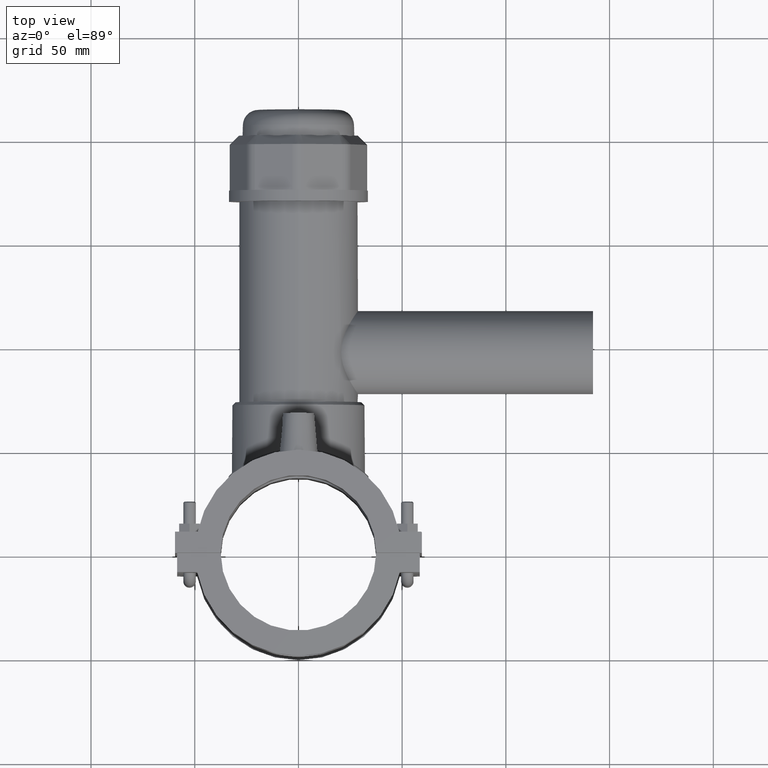
[diagram: clean part render]
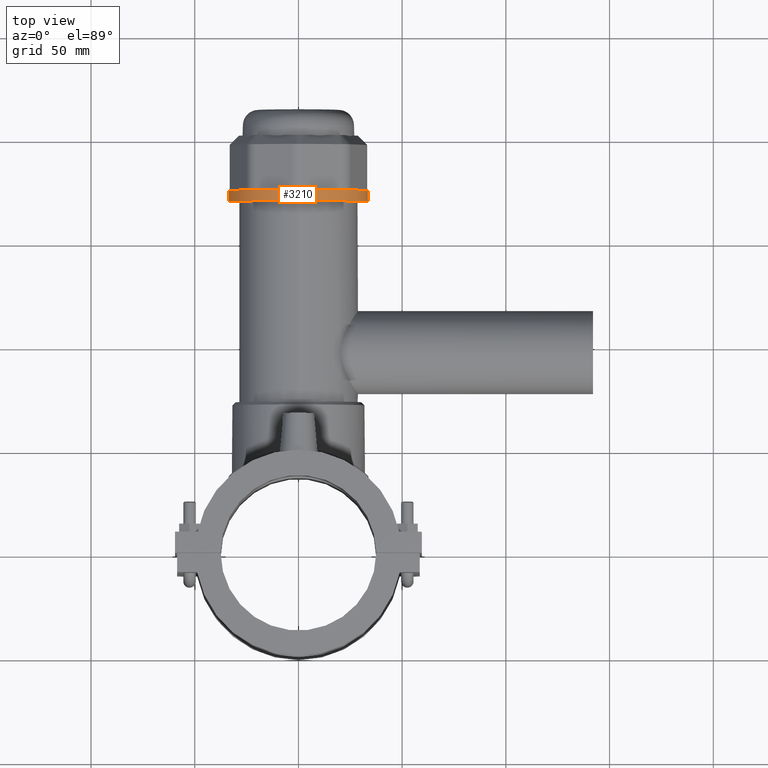
[diagram: same view with one face highlighted and labeled with its STEP entity id]
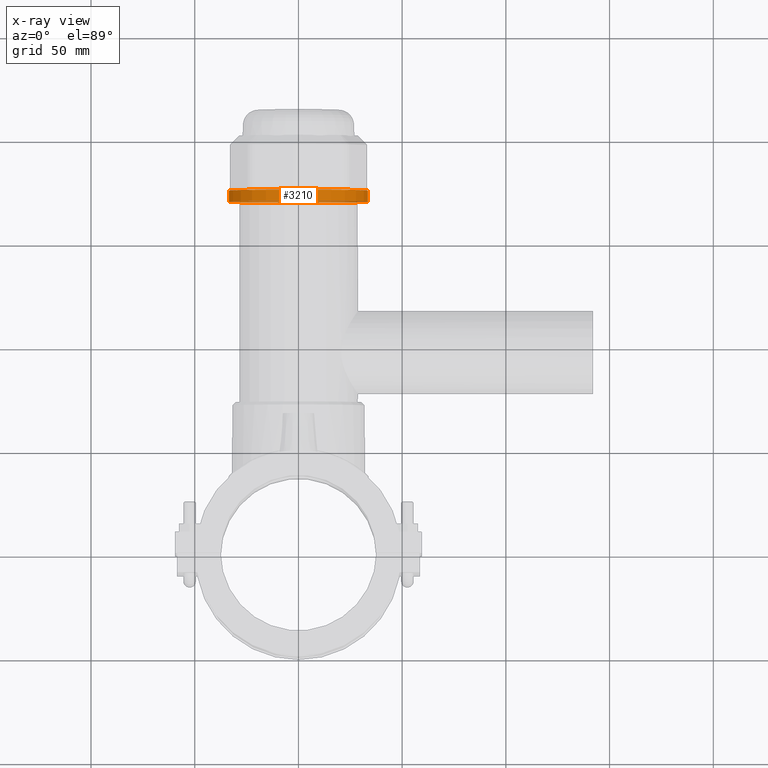
[diagram: x-ray of the same camera — body ghosted, the highlighted face saturated]
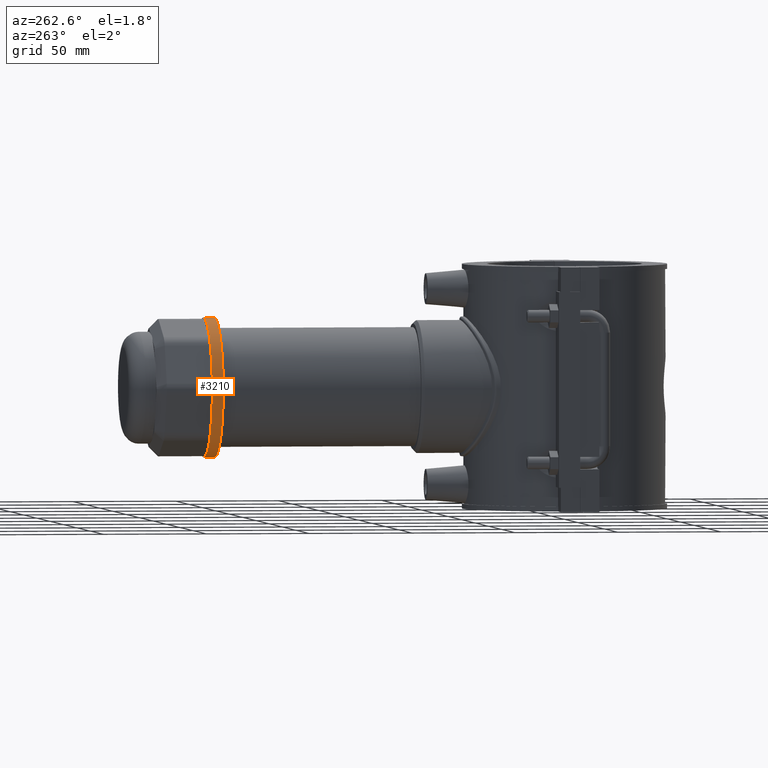
[diagram: same view with one face highlighted and labeled with its STEP entity id]
A machine part, top view. The second image highlights one B-rep face of the part: STEP entity #3210.
The next image is the same camera in x-ray: the body ghosted, the highlighted face saturated — about 12% of this face is hidden behind the body in this view.
A second angle (auxiliary view) of the same face is appended — the face is thin or edge-on in the first view.
In plain terms, the highlighted cylindrical surface (bore or boss wall) has radius 33.75 mm, axis along (0, 1, 0).
Its self-contained STEP definition (entity closure, byte-faithful):
#636=FACE_BOUND('',#1037,.T.);
#741=CYLINDRICAL_SURFACE('',#3455,33.75);
#830=FACE_OUTER_BOUND('',#1036,.T.);
#1036=EDGE_LOOP('',(#2336));
#1037=EDGE_LOOP('',(#2337));
#1258=CIRCLE('',#3450,33.75);
#1260=CIRCLE('',#3454,33.75);
#1410=VERTEX_POINT('',#5069);
#1412=VERTEX_POINT('',#5075);
#1760=EDGE_CURVE('',#1410,#1410,#1258,.T.);
#1762=EDGE_CURVE('',#1412,#1412,#1260,.T.);
#2336=ORIENTED_EDGE('',*,*,#1762,.T.);
#2337=ORIENTED_EDGE('',*,*,#1760,.F.);
#3210=ADVANCED_FACE('',(#830,#636),#741,.T.);
#3450=AXIS2_PLACEMENT_3D('',#5070,#3927,#3928);
#3454=AXIS2_PLACEMENT_3D('',#5076,#3935,#3936);
#3455=AXIS2_PLACEMENT_3D('',#5077,#3937,#3938);
#3927=DIRECTION('center_axis',(0.,1.,3.06161699786838E-16));
#3928=DIRECTION('ref_axis',(1.,0.,0.));
#3935=DIRECTION('center_axis',(0.,1.,3.06161699786838E-16));
#3936=DIRECTION('ref_axis',(1.,0.,0.));
#3937=DIRECTION('center_axis',(0.,1.,3.06161699786838E-16));
#3938=DIRECTION('ref_axis',(0.,0.,1.));
#5069=CARTESIAN_POINT('',(0.,175.56,33.75));
#5070=CARTESIAN_POINT('Origin',(0.,175.56,4.22686842725709E-14));
#5075=CARTESIAN_POINT('',(0.,170.25,33.75));
#5076=CARTESIAN_POINT('Origin',(0.,170.25,4.06429656467028E-14));
#5077=CARTESIAN_POINT('Origin',(0.,172.905,4.14558249596369E-14));